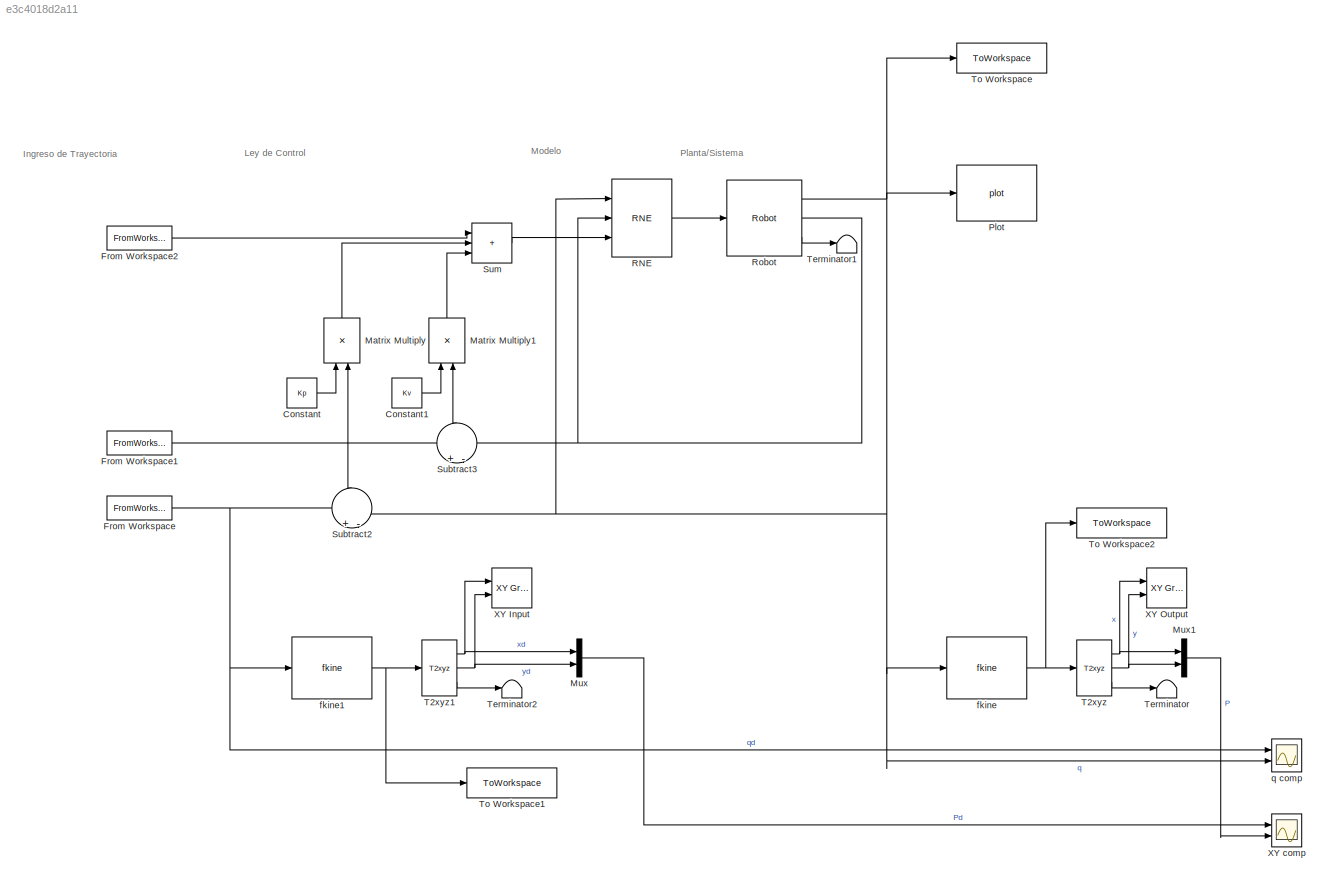
MODEL slx_e3c4018d2a11
KIND model
CONFIG AbsTol = auto
CONFIG EnableMultiTasking = off
CONFIG FixedStep = step
CONFIG MaxStep = auto
CONFIG MinStep = auto
CONFIG RelTol = 1e-3
CONFIG SampleTimeConstraint = Unconstrained
CONFIG SolverName = FixedStepAuto
CONFIG StartTime = 0.0
CONFIG StopTime = 2
BLOCK [Constant] Constant
  Value = Kp
BLOCK [Constant] Constant1
  Value = Kv
BLOCK [FromWorkspace] From Workspace
  SampleTime = step
  VariableName = sim_q
BLOCK [FromWorkspace] From Workspace1
  SampleTime = step
  VariableName = sim_qd
BLOCK [FromWorkspace] From Workspace2
  SampleTime = step
  VariableName = sim_qdd
BLOCK [Product] Matrix Multiply
  Multiplication = Matrix(*)
  NameLocation = right
  Ports = [2, 1]
BLOCK [Product] Matrix Multiply1
  Multiplication = Matrix(*)
  NameLocation = right
  Ports = [2, 1]
BLOCK [Mux] Mux
  DisplayOption = bar
  Inputs = 2
  Ports = [2, 1]
BLOCK [Mux] Mux1
  DisplayOption = bar
  Inputs = 2
  Ports = [2, 1]
BLOCK [Reference] Plot  REF=roblocks/Arm/plot  (lib defined in mdl_2a292b13c81b, mdl_69400f8cfe22, +12 more)
  Ports = [1]
  SourceBlock = roblocks/Arm/plot
BLOCK [Reference] RNE  REF=roblocks/Arm/RNE  (lib defined in mdl_2a292b13c81b, mdl_69400f8cfe22, +12 more)
  Ports = [3, 1]
  SourceBlock = roblocks/Arm/RNE
BLOCK [Reference] Robot  REF=roblocks/Arm/Robot  (lib defined in mdl_2a292b13c81b, mdl_69400f8cfe22, +12 more)
  Ports = [1, 3]
  SourceBlock = roblocks/Arm/Robot
BLOCK [Sum] Subtract2
  Inputs = +-
  NameLocation = right
  Ports = [2, 1]
BLOCK [Sum] Subtract3
  Inputs = +-
  NameLocation = right
  Ports = [2, 1]
BLOCK [Sum] Sum
  IconShape = rectangular
  Inputs = |+++
  Ports = [3, 1]
BLOCK [Reference] T2xyz  REF=roblocks/Toolbox/T2xyz  (lib defined in mdl_2a292b13c81b, mdl_69400f8cfe22, +12 more)
  Ports = [1, 3]
  SourceBlock = roblocks/Toolbox/T2xyz
BLOCK [Reference] T2xyz1  REF=roblocks/Toolbox/T2xyz  (lib defined in mdl_2a292b13c81b, mdl_69400f8cfe22, +12 more)
  Ports = [1, 3]
  SourceBlock = roblocks/Toolbox/T2xyz
BLOCK [Terminator] Terminator
BLOCK [Terminator] Terminator1
BLOCK [Terminator] Terminator2
BLOCK [ToWorkspace] To Workspace
  FixptAsFi = on
  MaxDataPoints = inf
  Ports = [1]
  SampleTime = -1
  SaveFormat = Timeseries
  VariableName = q_out
BLOCK [ToWorkspace] To Workspace1
  FixptAsFi = on
  MaxDataPoints = inf
  Ports = [1]
  SampleTime = -1
  SaveFormat = Timeseries
  VariableName = T_in
BLOCK [ToWorkspace] To Workspace2
  FixptAsFi = on
  MaxDataPoints = inf
  Ports = [1]
  SampleTime = -1
  SaveFormat = Timeseries
  VariableName = T_out
BLOCK [Reference] XY Input  REF=simulink/Sinks/XY Graph
  Ports = [2]
  SourceBlock = simulink/Sinks/XY Graph
  SourceProductBaseCode = SL
  SourceType = XY scope.
BLOCK [Reference] XY Output  REF=simulink/Sinks/XY Graph
  Ports = [2]
  SourceBlock = simulink/Sinks/XY Graph
  SourceProductBaseCode = SL
  SourceType = XY scope.
BLOCK [Scope] XY comp
  Floating = off
  NumInputPorts = 2
  Ports = [2]
  ScopeSpecificationString = Simulink.scopes.TimeScopeBlockCfg('CurrentConfiguration', extmgr.ConfigurationSet(extmgr.Configuration('Core','General UI',true),extmgr.Configuration('Core','Source UI',true),extmgr.Configuration('Sources','WiredSimulink',true),extmgr.Configuration('Visuals','Time Domain',true,'SerializedDisplays',{struct('MinYLimReal','-1.25001','MaxYLimReal','1.25007','YLabelReal','','MinYLimMag','0.00000','MaxY...<+1372ch>
BLOCK [Reference] fkine  REF=roblocks/Arm/fkine  (lib defined in mdl_2a292b13c81b, mdl_69400f8cfe22, +12 more)
  Ports = [1, 1]
  SourceBlock = roblocks/Arm/fkine
BLOCK [Reference] fkine1  REF=roblocks/Arm/fkine  (lib defined in mdl_2a292b13c81b, mdl_69400f8cfe22, +12 more)
  Ports = [1, 1]
  SourceBlock = roblocks/Arm/fkine
BLOCK [Scope] q comp
  Floating = off
  NumInputPorts = 2
  Ports = [2]
  ScopeSpecificationString = Simulink.scopes.TimeScopeBlockCfg('CurrentConfiguration', extmgr.ConfigurationSet(extmgr.Configuration('Core','General UI',true),extmgr.Configuration('Core','Source UI',true),extmgr.Configuration('Sources','WiredSimulink',true,'DataLoggingVariableName','ScopeData1'),extmgr.Configuration('Visuals','Time Domain',true,'SerializedDisplays',{struct('MinYLimReal','-2.55262','MaxYLimReal','2.02964','YLab...<+1409ch>
ANNOTATION (root): Ingreso de Trayectoria
ANNOTATION (root): Ley de Control
ANNOTATION (root): Modelo
ANNOTATION (root): Planta/Sistema
LINE Constant1:1 -> Matrix Multiply1:1
LINE Constant:1 -> Matrix Multiply:1
LINE From Workspace1:1 -> Subtract3:1
LINE From Workspace2:1 -> Sum:1
NET From Workspace:1 -> Subtract2:1, fkine1:1, q comp:1
LINE Matrix Multiply1:1 -> Sum:3
LINE Matrix Multiply:1 -> Sum:2
LINE Mux1:1 -> XY comp:2
LINE Mux:1 -> XY comp:1
LINE RNE:1 -> Robot:1
NET Robot:1 -> Plot:1, RNE:1, Subtract2:2, To Workspace:1, fkine:1, q comp:2
NET Robot:2 -> RNE:2, Subtract3:2
LINE Robot:3 -> Terminator1:1
LINE Subtract2:1 -> Matrix Multiply:2
LINE Subtract3:1 -> Matrix Multiply1:2
LINE Sum:1 -> RNE:3
NET T2xyz1:1 -> Mux:1, XY Input:1
NET T2xyz1:2 -> Mux:2, XY Input:2
LINE T2xyz1:3 -> Terminator2:1
NET T2xyz:1 -> Mux1:1, XY Output:1
NET T2xyz:2 -> Mux1:2, XY Output:2
LINE T2xyz:3 -> Terminator:1
NET fkine1:1 -> T2xyz1:1, To Workspace1:1
NET fkine:1 -> T2xyz:1, To Workspace2:1
note: NET lines group one-source signal fan-out (src -> all destinations, sorted); 1:1 wires keep LINE
